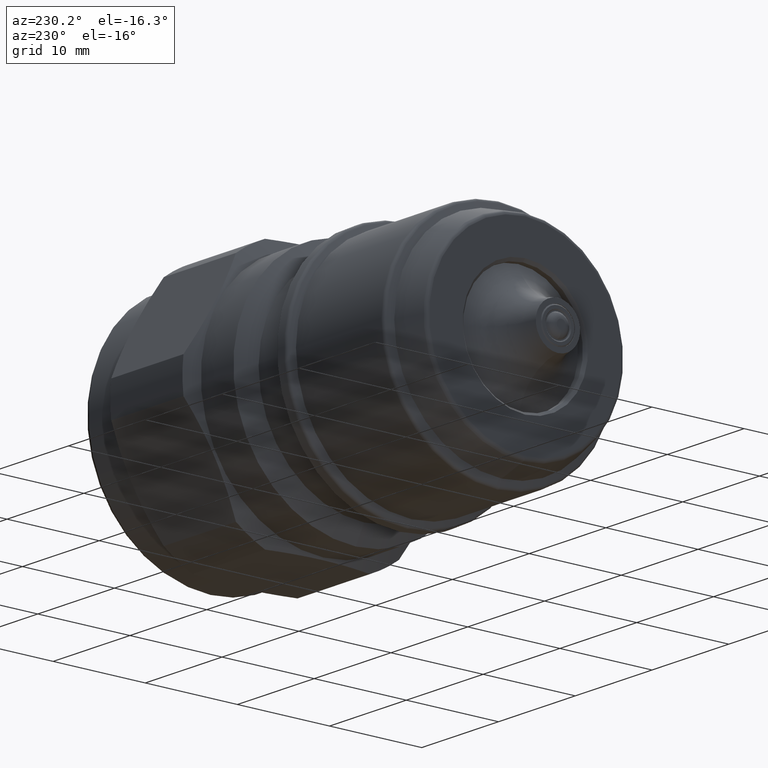
[diagram: clean part render]
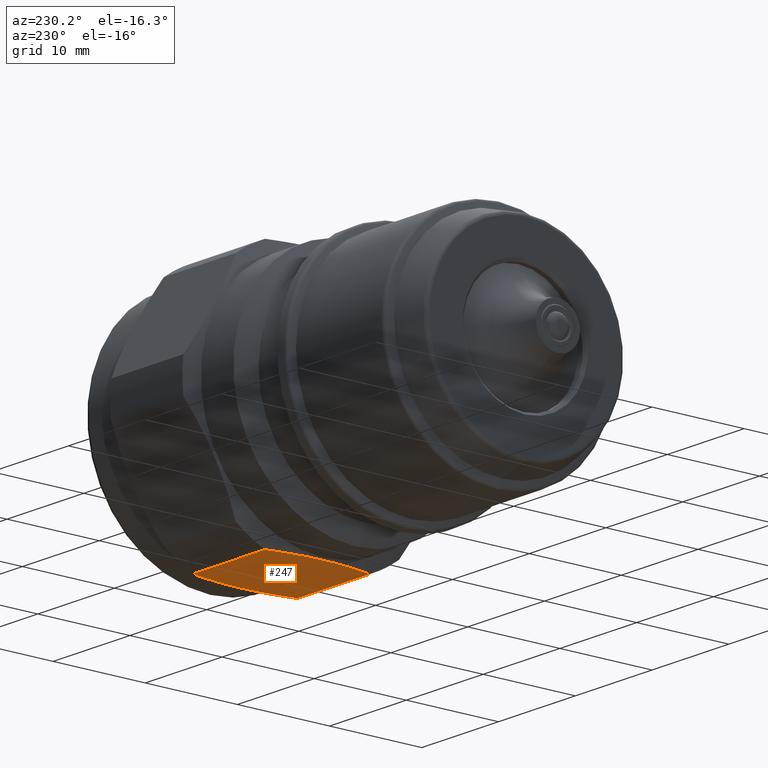
[diagram: same view with one face highlighted and labeled with its STEP entity id]
A machine part, auxiliary view. The second image highlights one B-rep face of the part: STEP entity #247.
In plain terms, the highlighted planar face has unit normal (0, 0, -1).
Its self-contained STEP definition (entity closure, byte-faithful):
#33 = VERTEX_POINT ( 'NONE', #119 ) ;
#36 = VERTEX_POINT ( 'NONE', #122 ) ;
#57 = VERTEX_POINT ( 'NONE', #146 ) ;
#66 = VERTEX_POINT ( 'NONE', #154 ) ;
#83 = VERTEX_POINT ( 'NONE', #169 ) ;
#99 = VERTEX_POINT ( 'NONE', #142 ) ;
#119 = CARTESIAN_POINT ( 'NONE',  ( -14.42057713477462100, -5.689683646741720200, -13.50000000000000000 ) ) ;
#122 = CARTESIAN_POINT ( 'NONE',  ( -14.42057713477462100, 5.689683646741720200, -13.50000000000000000 ) ) ;
#142 = CARTESIAN_POINT ( 'NONE',  ( -5.008290375046099600, 5.689683646741720200, -13.50000000000000000 ) ) ;
#146 = CARTESIAN_POINT ( 'NONE',  ( -5.008290375046099600, -5.689683646741720200, -13.50000000000000000 ) ) ;
#154 = CARTESIAN_POINT ( 'NONE',  ( -15.08452994434267500, -3.997158206754866800E-024, -13.49999999999999800 ) ) ;
#169 = CARTESIAN_POINT ( 'NONE',  ( -4.344337565478029200, 1.653273174754285200E-015, -13.49999999999999800 ) ) ;
#247 = ADVANCED_FACE ( 'NONE', ( #1109 ), #425, .T. ) ;
#260 = CARTESIAN_POINT ( 'NONE',  ( -14.79582076128084700, 3.823694834964523000, -13.49999999999999800 ) ) ;
#263 = CARTESIAN_POINT ( 'NONE',  ( -15.01148398514826400, 1.912828775626461900, -13.49999999999999800 ) ) ;
#268 = CARTESIAN_POINT ( 'NONE',  ( -15.08452994434267300, 0.4768781680681040100, -13.49999999999999800 ) ) ;
#282 = CARTESIAN_POINT ( 'NONE',  ( -15.08452994434267500, -3.997158206754866800E-024, -13.49999999999999800 ) ) ;
#283 = CARTESIAN_POINT ( 'NONE',  ( -14.62853177064387800, 4.762258774938939800, -13.49999999999999800 ) ) ;
#286 = CARTESIAN_POINT ( 'NONE',  ( -14.96748728089084900, 2.394136245003917600, -13.49999999999999500 ) ) ;
#288 = CARTESIAN_POINT ( 'NONE',  ( -15.06990040608926600, 0.9548210375684940100, -13.49999999999999800 ) ) ;
#290 = CARTESIAN_POINT ( 'NONE',  ( -14.42057713477462100, 5.689683646741720200, -13.50000000000000000 ) ) ;
#425 = PLANE ( 'NONE',  #1284 ) ;
#426 = CARTESIAN_POINT ( 'NONE',  ( -46.18600000000000000, -7.794228634059950700, -13.50000000000000000 ) ) ;
#427 = DIRECTION ( 'NONE',  ( 0.0000000000000000000, 2.225651257388385200E-016, -1.000000000000000000 ) ) ;
#429 = DIRECTION ( 'NONE',  ( 0.0000000000000000000, 1.000000000000000000, 2.225651257388385200E-016 ) ) ;
#470 = CARTESIAN_POINT ( 'NONE',  ( -4.344337565478029200, 1.653273174754285200E-015, -13.49999999999999800 ) ) ;
#472 = CARTESIAN_POINT ( 'NONE',  ( -4.344337565478028300, 0.4768734268355036000, -13.49999999999999600 ) ) ;
#475 = CARTESIAN_POINT ( 'NONE',  ( -4.461377112453547500, 2.394106573189716400, -13.49999999999999600 ) ) ;
#476 = CARTESIAN_POINT ( 'NONE',  ( -4.417381461400463400, 1.912801319271096900, -13.50000000000000000 ) ) ;
#478 = CARTESIAN_POINT ( 'NONE',  ( -4.358966811436610000, 0.9548098632405630500, -13.50000000000000000 ) ) ;
#479 = CARTESIAN_POINT ( 'NONE',  ( -4.633044545248027100, 3.823683925215565400, -13.50000000000000000 ) ) ;
#480 = CARTESIAN_POINT ( 'NONE',  ( -5.008290375046099600, 5.689683646741720200, -13.50000000000000000 ) ) ;
#481 = CARTESIAN_POINT ( 'NONE',  ( -4.800334929144833400, 4.762255162401940500, -13.49999999999999800 ) ) ;
#753 = EDGE_LOOP ( 'NONE', ( #1082, #1083, #899, #980, #998, #903 ) ) ;
#899 = ORIENTED_EDGE ( 'NONE', *, *, #1455, .F. ) ;
#903 = ORIENTED_EDGE ( 'NONE', *, *, #1419, .F. ) ;
#980 = ORIENTED_EDGE ( 'NONE', *, *, #1425, .F. ) ;
#998 = ORIENTED_EDGE ( 'NONE', *, *, #1452, .F. ) ;
#1082 = ORIENTED_EDGE ( 'NONE', *, *, #1427, .F. ) ;
#1083 = ORIENTED_EDGE ( 'NONE', *, *, #1398, .F. ) ;
#1109 = FACE_OUTER_BOUND ( 'NONE', #753, .T. ) ;
#1284 = AXIS2_PLACEMENT_3D ( 'NONE', #426, #427, #429 ) ;
#1398 = EDGE_CURVE ( 'NONE', #66, #33, #1901, .T. ) ;
#1419 = EDGE_CURVE ( 'NONE', #57, #83, #1895, .T. ) ;
#1425 = EDGE_CURVE ( 'NONE', #99, #36, #2022, .T. ) ;
#1427 = EDGE_CURVE ( 'NONE', #33, #57, #2017, .T. ) ;
#1452 = EDGE_CURVE ( 'NONE', #83, #99, #1905, .T. ) ;
#1455 = EDGE_CURVE ( 'NONE', #36, #66, #1892, .T. ) ;
#1769 = CARTESIAN_POINT ( 'NONE',  ( -15.08452994434267500, -3.997158206754866800E-024, -13.49999999999999800 ) ) ;
#1770 = CARTESIAN_POINT ( 'NONE',  ( -15.08452994434267500, -0.9563340803273142600, -13.49999999999999600 ) ) ;
#1771 = CARTESIAN_POINT ( 'NONE',  ( -15.02527803439951100, -1.908355953919900600, -13.50000000000000000 ) ) ;
#1772 = CARTESIAN_POINT ( 'NONE',  ( -14.79865739543315700, -3.804531227737347500, -13.49999999999999800 ) ) ;
#1774 = CARTESIAN_POINT ( 'NONE',  ( -14.63157086944082900, -4.748705165997380500, -13.49999999999999800 ) ) ;
#1775 = CARTESIAN_POINT ( 'NONE',  ( -14.42057713477462100, -5.689683646741720200, -13.50000000000000000 ) ) ;
#1803 = CARTESIAN_POINT ( 'NONE',  ( -4.344337565478028300, -0.9563214436190077300, -13.49999999999999800 ) ) ;
#1804 = CARTESIAN_POINT ( 'NONE',  ( -4.344337565478029200, 1.653273174754285200E-015, -13.49999999999999800 ) ) ;
#1831 = CARTESIAN_POINT ( 'NONE',  ( -17.44999999818065100, 5.689683646741720200, -13.50000000000000000 ) ) ;
#1833 = DIRECTION ( 'NONE',  ( -1.000000000000000000, 0.0000000000000000000, 0.0000000000000000000 ) ) ;
#1836 = CARTESIAN_POINT ( 'NONE',  ( -17.44999999818065100, -5.689683646741720200, -13.50000000000000000 ) ) ;
#1838 = DIRECTION ( 'NONE',  ( 1.000000000000000000, -0.0000000000000000000, -0.0000000000000000000 ) ) ;
#1867 = CARTESIAN_POINT ( 'NONE',  ( -5.008290375046099600, -5.689683646741720200, -13.50000000000000000 ) ) ;
#1868 = CARTESIAN_POINT ( 'NONE',  ( -4.797294112415020400, -4.748693891916023100, -13.49999999999999800 ) ) ;
#1869 = CARTESIAN_POINT ( 'NONE',  ( -4.630207313976290700, -3.804513529675373800, -13.50000000000000200 ) ) ;
#1872 = CARTESIAN_POINT ( 'NONE',  ( -4.403587961939777500, -1.908337556763892500, -13.49999999999999800 ) ) ;
#1892 = B_SPLINE_CURVE_WITH_KNOTS ( 'NONE', 3,
 ( #290, #283, #260, #286, #263, #288, #268, #282 ),
 .UNSPECIFIED., .F., .F.,
 ( 4, 2, 2, 4 ),
 ( 0.007995276712115983300, 0.01084351802002712000, 0.01226763867398269000, 0.01369175932793825800 ),
 .UNSPECIFIED. ) ;
#1895 = B_SPLINE_CURVE_WITH_KNOTS ( 'NONE', 3,
 ( #1867, #1868, #1869, #1872, #1803, #1804 ),
 .UNSPECIFIED., .F., .F.,
 ( 4, 2, 4 ),
 ( 0.01595872734005580200, 0.01882154422078250200, 0.02168436110150920300 ),
 .UNSPECIFIED. ) ;
#1901 = B_SPLINE_CURVE_WITH_KNOTS ( 'NONE', 3,
 ( #1769, #1770, #1771, #1772, #1774, #1775 ),
 .UNSPECIFIED., .F., .F.,
 ( 4, 2, 4 ),
 ( 0.01369175932793825800, 0.01654769865808860100, 0.01940363798823894300 ),
 .UNSPECIFIED. ) ;
#1905 = B_SPLINE_CURVE_WITH_KNOTS ( 'NONE', 3,
 ( #470, #472, #478, #476, #475, #479, #481, #480 ),
 .UNSPECIFIED., .F., .F.,
 ( 4, 2, 2, 4 ),
 ( 0.02168436110150920300, 0.02311191593197324500, 0.02453947076243728800, 0.02739458042336537200 ),
 .UNSPECIFIED. ) ;
#2010 = VECTOR ( 'NONE', #1833, 1000.000000000000000 ) ;
#2017 = LINE ( 'NONE', #1836, #2023 ) ;
#2022 = LINE ( 'NONE', #1831, #2010 ) ;
#2023 = VECTOR ( 'NONE', #1838, 1000.000000000000000 ) ;